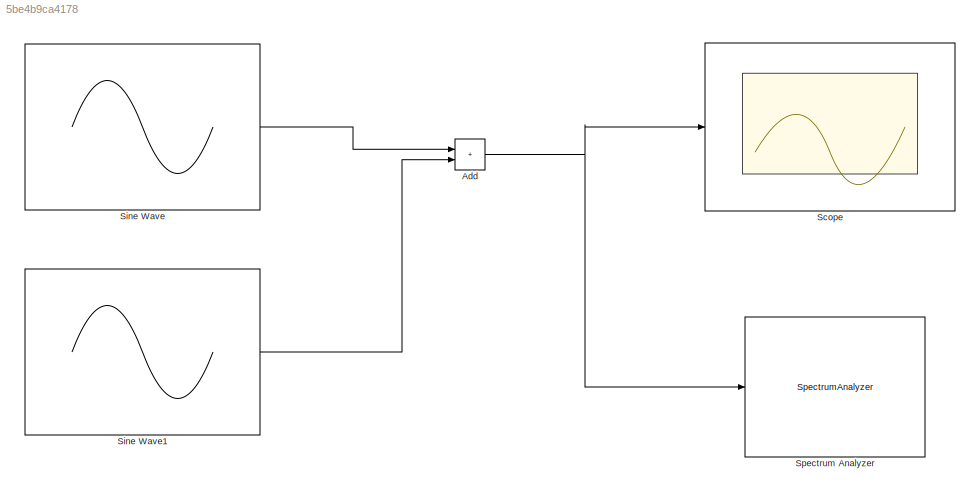
MODEL slx_5be4b9ca4178
KIND model
CONFIG AbsTol = auto
CONFIG EnableMultiTasking = off
CONFIG FixedStep = auto
CONFIG MaxStep = auto
CONFIG MinStep = auto
CONFIG RelTol = 1e-3
CONFIG SampleTimeConstraint = Unconstrained
CONFIG SolverName = VariableStepAuto
CONFIG StartTime = 0.0
CONFIG StopTime = 10000
BLOCK [Sum] Add
  IconShape = rectangular
BLOCK [Scope] Scope
  Floating = off
  NumInputPorts = 1
  ScopeSpecificationString = Simulink.scopes.TimeScopeBlockCfg('CurrentConfiguration', extmgr.ConfigurationSet(extmgr.Configuration('Core','General UI',true),extmgr.Configuration('Core','Source UI',true),extmgr.Configuration('Sources','WiredSimulink',true),extmgr.Configuration('Visuals','Time Domain',true,'SerializedDisplays',{struct('MinYLimReal','-1.92355','MaxYLimReal','1.92355','YLabelReal','','MinYLimMag','0.00000','MaxY...<+1352ch>
BLOCK [Sin] Sine Wave
  SampleTime = 1
  SineType = Sample based
BLOCK [Sin] Sine Wave1
  Offset = 2
  SampleTime = 1
  SineType = Sample based
BLOCK [SpectrumAnalyzer] Spectrum Analyzer
  GraphicalSettings = {"GraphicalSettings":{"Style":{"BackgroundColor":[0.12941176470588237,0.12941176470588237,0.12941176470588237],"AxesColor":[0.07058823529411765,0.07058823529411765,0.07058823529411765],"LabelsColor":[0.8509803921568627,0.8509803921568627,0.8509803921568627],"PreserveColors":false,"Visible":[true],"LineStyle":["-"],"LineColor":[[1,1,0.06666666666666667]],"LineWidth":[1.5],"Marker":["none"],"FontSiz...<+928ch>
  ScopeFrameLocation = window
  SelectedToolstripTab = spectrumAnalyzerToolstrip.measurementsTab
  Span = 1
  StartFrequency = -0.5
  StopFrequency = 0.5
  WasSavedAsWebScope = on
  WindowPosition = [8.000000,22.000000,481.000000,500.000000,]
  YLimits = [-59.65627074,30.9254298]
NET Add:1 -> Scope:1, Spectrum Analyzer:1
LINE Sine Wave1:1 -> Add:2
LINE Sine Wave:1 -> Add:1
note: NET lines group one-source signal fan-out (src -> all destinations, sorted); 1:1 wires keep LINE
